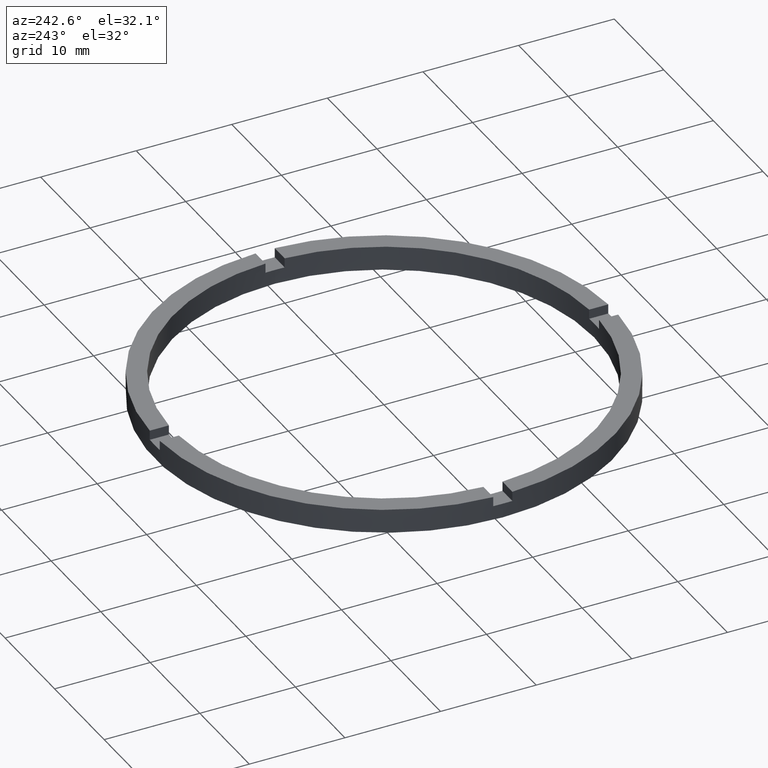
[diagram: clean part render]
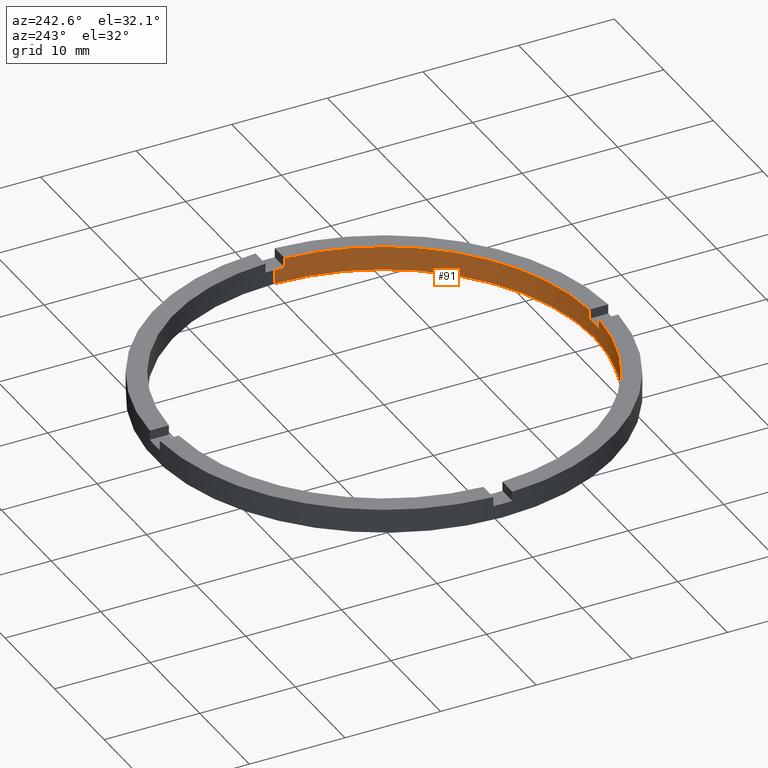
[diagram: same view with one face highlighted and labeled with its STEP entity id]
A machine part, auxiliary view. The second image highlights one B-rep face of the part: STEP entity #91.
In plain terms, the highlighted cylindrical surface (partial cylindrical patch) has radius 22 mm, axis along (-0, -0, -1).
Its self-contained STEP definition (entity closure, byte-faithful):
#7 = DIRECTION ( 'NONE',  ( -0.000000000000000000, -0.000000000000000000, -1.000000000000000000 ) ) ;
#28 = DIRECTION ( 'NONE',  ( 1.000000000000000000, 0.000000000000000000, 0.000000000000000000 ) ) ;
#40 = EDGE_CURVE ( 'NONE', #572, #52, #575, .T. ) ;
#44 = ORIENTED_EDGE ( 'NONE', *, *, #184, .F. ) ;
#47 = VECTOR ( 'NONE', #166, 1000.000000000000000 ) ;
#50 = ORIENTED_EDGE ( 'NONE', *, *, #691, .T. ) ;
#52 = VERTEX_POINT ( 'NONE', #202 ) ;
#58 = CIRCLE ( 'NONE', #705, 22.00000000000000000 ) ;
#66 = ORIENTED_EDGE ( 'NONE', *, *, #597, .T. ) ;
#67 = ORIENTED_EDGE ( 'NONE', *, *, #613, .F. ) ;
#69 = ORIENTED_EDGE ( 'NONE', *, *, #600, .T. ) ;
#75 = LINE ( 'NONE', #214, #596 ) ;
#77 = LINE ( 'NONE', #654, #333 ) ;
#91 = ADVANCED_FACE ( 'NONE', ( #297 ), #570, .F. ) ;
#106 = CIRCLE ( 'NONE', #453, 22.00000000000000000 ) ;
#110 = CIRCLE ( 'NONE', #736, 22.00000000000000000 ) ;
#113 = LINE ( 'NONE', #159, #642 ) ;
#118 = VECTOR ( 'NONE', #151, 1000.000000000000000 ) ;
#130 = EDGE_CURVE ( 'NONE', #427, #132, #58, .T. ) ;
#132 = VERTEX_POINT ( 'NONE', #408 ) ;
#136 = EDGE_CURVE ( 'NONE', #228, #146, #312, .T. ) ;
#146 = VERTEX_POINT ( 'NONE', #418 ) ;
#147 = CARTESIAN_POINT ( 'NONE',  ( 22.00000000000000000, 2.694222958124176809E-15, 1.500000000000000000 ) ) ;
#151 = DIRECTION ( 'NONE',  ( 0.000000000000000000, 0.000000000000000000, 1.000000000000000000 ) ) ;
#159 = CARTESIAN_POINT ( 'NONE',  ( -22.00000000000000000, 0.000000000000000000, 2.500000000000000000 ) ) ;
#161 = ORIENTED_EDGE ( 'NONE', *, *, #40, .F. ) ;
#166 = DIRECTION ( 'NONE',  ( -0.000000000000000000, -0.000000000000000000, -1.000000000000000000 ) ) ;
#171 = CARTESIAN_POINT ( 'NONE',  ( 0.000000000000000000, 0.000000000000000000, 2.500000000000000000 ) ) ;
#184 = EDGE_CURVE ( 'NONE', #224, #591, #75, .T. ) ;
#188 = AXIS2_PLACEMENT_3D ( 'NONE', #402, #764, #745 ) ;
#195 = CARTESIAN_POINT ( 'NONE',  ( -1.000000000000160538, -21.97726097583589677, 1.500000000000000000 ) ) ;
#202 = CARTESIAN_POINT ( 'NONE',  ( -21.97726097583590743, -1.000000000000025535, 1.500000000000000000 ) ) ;
#204 = DIRECTION ( 'NONE',  ( 1.000000000000000000, 0.000000000000000000, 0.000000000000000000 ) ) ;
#214 = CARTESIAN_POINT ( 'NONE',  ( 0.9999999999998391287, -21.97726097583591809, 2.500000000000000000 ) ) ;
#222 = VERTEX_POINT ( 'NONE', #195 ) ;
#224 = VERTEX_POINT ( 'NONE', #556 ) ;
#225 = EDGE_LOOP ( 'NONE', ( #50, #325, #398, #67, #69, #161, #66, #294, #413, #44, #293, #419 ) ) ;
#228 = VERTEX_POINT ( 'NONE', #480 ) ;
#243 = CARTESIAN_POINT ( 'NONE',  ( -1.000000000000160538, -21.97726097583589677, 2.500000000000000000 ) ) ;
#256 = CARTESIAN_POINT ( 'NONE',  ( 0.9999999999998386846, -21.97726097583591454, 1.500000000000000000 ) ) ;
#259 = AXIS2_PLACEMENT_3D ( 'NONE', #495, #699, #455 ) ;
#269 = AXIS2_PLACEMENT_3D ( 'NONE', #656, #329, #387 ) ;
#293 = ORIENTED_EDGE ( 'NONE', *, *, #406, .T. ) ;
#294 = ORIENTED_EDGE ( 'NONE', *, *, #554, .F. ) ;
#297 = FACE_OUTER_BOUND ( 'NONE', #225, .T. ) ;
#312 = LINE ( 'NONE', #372, #576 ) ;
#321 = VERTEX_POINT ( 'NONE', #147 ) ;
#325 = ORIENTED_EDGE ( 'NONE', *, *, #342, .T. ) ;
#329 = DIRECTION ( 'NONE',  ( 0.000000000000000000, 0.000000000000000000, 1.000000000000000000 ) ) ;
#333 = VECTOR ( 'NONE', #744, 1000.000000000000000 ) ;
#339 = CARTESIAN_POINT ( 'NONE',  ( 0.000000000000000000, 0.000000000000000000, 0.000000000000000000 ) ) ;
#342 = EDGE_CURVE ( 'NONE', #321, #132, #77, .T. ) ;
#353 = EDGE_CURVE ( 'NONE', #222, #591, #602, .T. ) ;
#372 = CARTESIAN_POINT ( 'NONE',  ( 21.97726097583590388, -1.000000000000157874, 2.500000000000000000 ) ) ;
#387 = DIRECTION ( 'NONE',  ( 1.000000000000000000, 0.000000000000000000, 0.000000000000000000 ) ) ;
#397 = DIRECTION ( 'NONE',  ( 1.000000000000000000, 0.000000000000000000, 0.000000000000000000 ) ) ;
#398 = ORIENTED_EDGE ( 'NONE', *, *, #130, .F. ) ;
#402 = CARTESIAN_POINT ( 'NONE',  ( 0.000000000000000000, 0.000000000000000000, 2.500000000000000000 ) ) ;
#406 = EDGE_CURVE ( 'NONE', #224, #146, #106, .T. ) ;
#408 = CARTESIAN_POINT ( 'NONE',  ( 22.00000000000000000, 2.694222958124176809E-15, 0.000000000000000000 ) ) ;
#413 = ORIENTED_EDGE ( 'NONE', *, *, #353, .T. ) ;
#418 = CARTESIAN_POINT ( 'NONE',  ( 21.97726097583590388, -1.000000000000157874, 2.500000000000000000 ) ) ;
#419 = ORIENTED_EDGE ( 'NONE', *, *, #136, .F. ) ;
#421 = CARTESIAN_POINT ( 'NONE',  ( 0.000000000000000000, 0.000000000000000000, 1.500000000000000000 ) ) ;
#426 = CARTESIAN_POINT ( 'NONE',  ( -22.00000000000000000, 0.000000000000000000, 1.500000000000000000 ) ) ;
#427 = VERTEX_POINT ( 'NONE', #667 ) ;
#433 = CARTESIAN_POINT ( 'NONE',  ( -21.97726097583590743, -1.000000000000025535, 2.500000000000000000 ) ) ;
#453 = AXIS2_PLACEMENT_3D ( 'NONE', #171, #521, #204 ) ;
#455 = DIRECTION ( 'NONE',  ( 1.000000000000000000, 0.000000000000000000, 0.000000000000000000 ) ) ;
#465 = DIRECTION ( 'NONE',  ( 0.000000000000000000, 0.000000000000000000, 1.000000000000000000 ) ) ;
#470 = VERTEX_POINT ( 'NONE', #243 ) ;
#475 = DIRECTION ( 'NONE',  ( -0.000000000000000000, -0.000000000000000000, -1.000000000000000000 ) ) ;
#480 = CARTESIAN_POINT ( 'NONE',  ( 21.97726097583590388, -1.000000000000157874, 1.500000000000000000 ) ) ;
#492 = CARTESIAN_POINT ( 'NONE',  ( -1.000000000000160982, -21.97726097583590033, 2.500000000000000000 ) ) ;
#495 = CARTESIAN_POINT ( 'NONE',  ( 0.000000000000000000, 0.000000000000000000, 1.500000000000000000 ) ) ;
#521 = DIRECTION ( 'NONE',  ( 0.000000000000000000, 0.000000000000000000, 1.000000000000000000 ) ) ;
#554 = EDGE_CURVE ( 'NONE', #222, #470, #639, .T. ) ;
#556 = CARTESIAN_POINT ( 'NONE',  ( 0.9999999999998386846, -21.97726097583591454, 2.500000000000000000 ) ) ;
#570 = CYLINDRICAL_SURFACE ( 'NONE', #188, 22.00000000000000000 ) ;
#572 = VERTEX_POINT ( 'NONE', #433 ) ;
#574 = DIRECTION ( 'NONE',  ( 0.000000000000000000, 0.000000000000000000, 1.000000000000000000 ) ) ;
#575 = LINE ( 'NONE', #700, #47 ) ;
#576 = VECTOR ( 'NONE', #687, 1000.000000000000000 ) ;
#577 = VERTEX_POINT ( 'NONE', #426 ) ;
#591 = VERTEX_POINT ( 'NONE', #256 ) ;
#596 = VECTOR ( 'NONE', #7, 1000.000000000000000 ) ;
#597 = EDGE_CURVE ( 'NONE', #572, #470, #634, .T. ) ;
#600 = EDGE_CURVE ( 'NONE', #577, #52, #646, .T. ) ;
#602 = CIRCLE ( 'NONE', #259, 22.00000000000000000 ) ;
#613 = EDGE_CURVE ( 'NONE', #577, #427, #113, .T. ) ;
#633 = DIRECTION ( 'NONE',  ( 1.000000000000000000, 0.000000000000000000, 0.000000000000000000 ) ) ;
#634 = CIRCLE ( 'NONE', #649, 22.00000000000000000 ) ;
#639 = LINE ( 'NONE', #492, #118 ) ;
#642 = VECTOR ( 'NONE', #475, 1000.000000000000000 ) ;
#646 = CIRCLE ( 'NONE', #269, 22.00000000000000000 ) ;
#649 = AXIS2_PLACEMENT_3D ( 'NONE', #740, #574, #633 ) ;
#654 = CARTESIAN_POINT ( 'NONE',  ( 22.00000000000000000, 2.694222958124176809E-15, 2.500000000000000000 ) ) ;
#656 = CARTESIAN_POINT ( 'NONE',  ( 0.000000000000000000, 0.000000000000000000, 1.500000000000000000 ) ) ;
#657 = DIRECTION ( 'NONE',  ( 0.000000000000000000, 0.000000000000000000, 1.000000000000000000 ) ) ;
#667 = CARTESIAN_POINT ( 'NONE',  ( -22.00000000000000000, 0.000000000000000000, 0.000000000000000000 ) ) ;
#687 = DIRECTION ( 'NONE',  ( 0.000000000000000000, 0.000000000000000000, 1.000000000000000000 ) ) ;
#691 = EDGE_CURVE ( 'NONE', #228, #321, #110, .T. ) ;
#699 = DIRECTION ( 'NONE',  ( -0.000000000000000000, 0.000000000000000000, 1.000000000000000000 ) ) ;
#700 = CARTESIAN_POINT ( 'NONE',  ( -21.97726097583590743, -1.000000000000025535, 2.500000000000000000 ) ) ;
#705 = AXIS2_PLACEMENT_3D ( 'NONE', #339, #657, #397 ) ;
#736 = AXIS2_PLACEMENT_3D ( 'NONE', #421, #465, #28 ) ;
#740 = CARTESIAN_POINT ( 'NONE',  ( 0.000000000000000000, 0.000000000000000000, 2.500000000000000000 ) ) ;
#744 = DIRECTION ( 'NONE',  ( -0.000000000000000000, -0.000000000000000000, -1.000000000000000000 ) ) ;
#745 = DIRECTION ( 'NONE',  ( -1.000000000000000000, 0.000000000000000000, 0.000000000000000000 ) ) ;
#764 = DIRECTION ( 'NONE',  ( -0.000000000000000000, -0.000000000000000000, -1.000000000000000000 ) ) ;